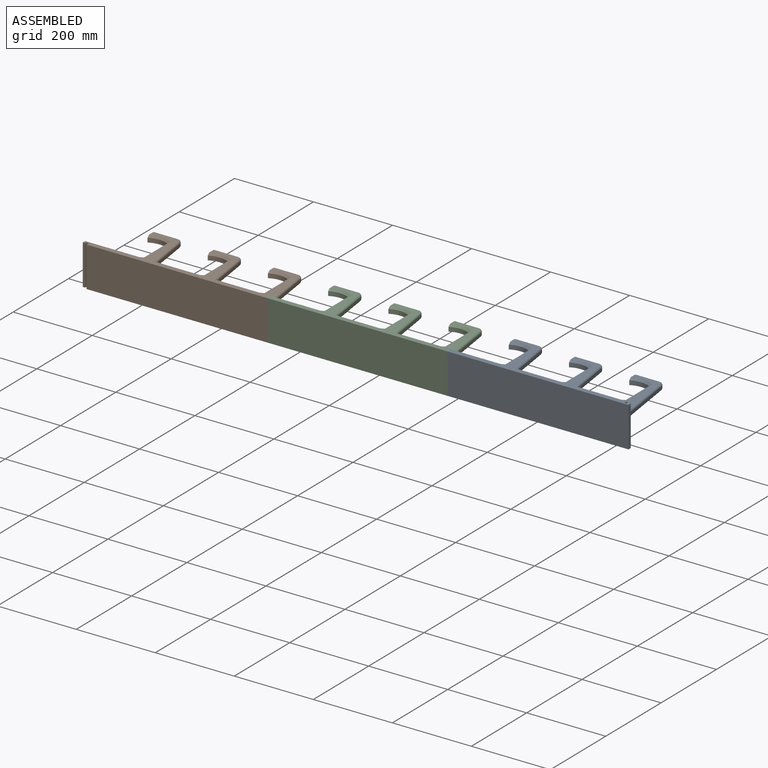
[diagram: assembled view]
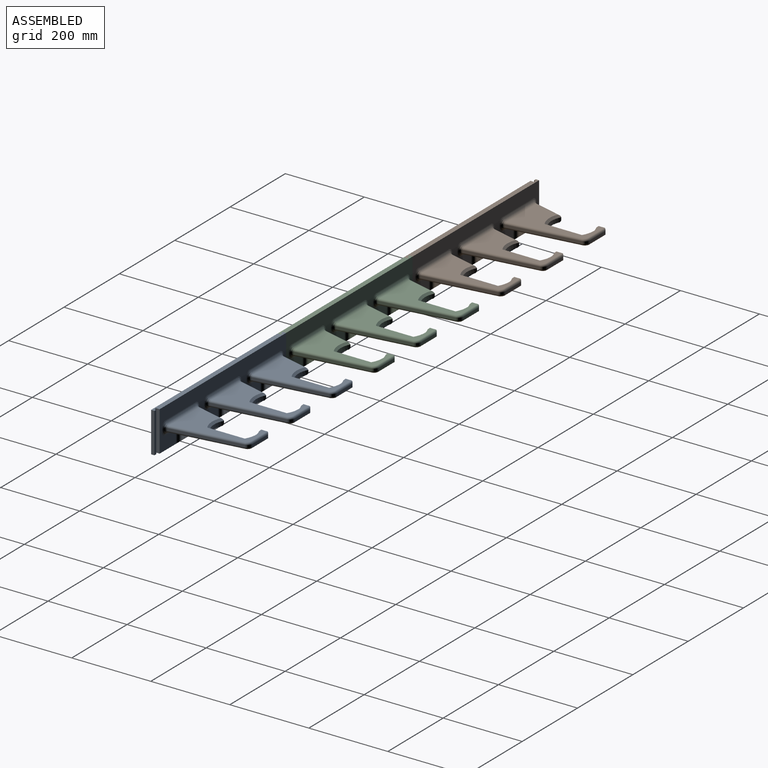
[diagram: assembled view, second angle]
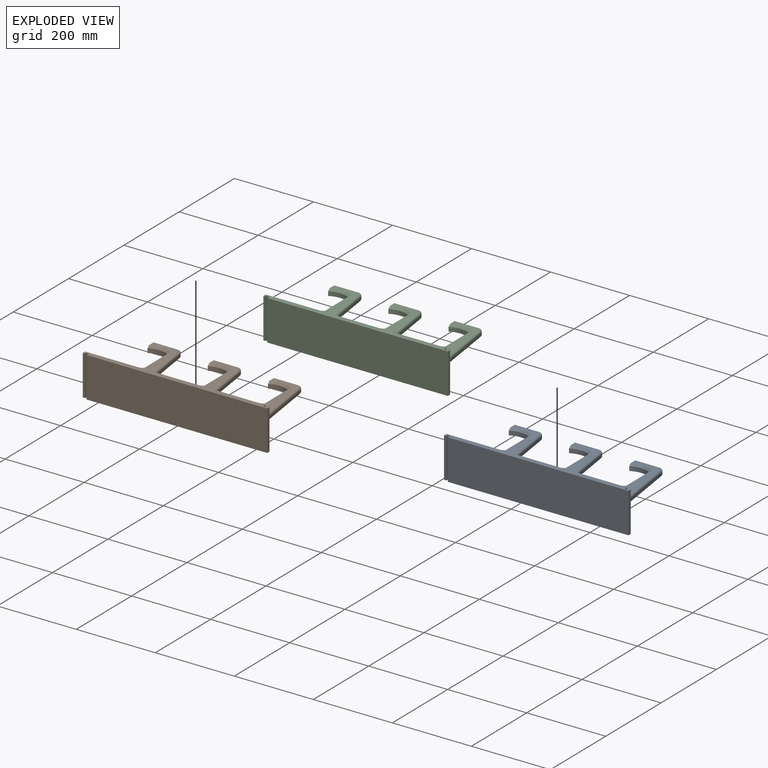
[diagram: exploded view]
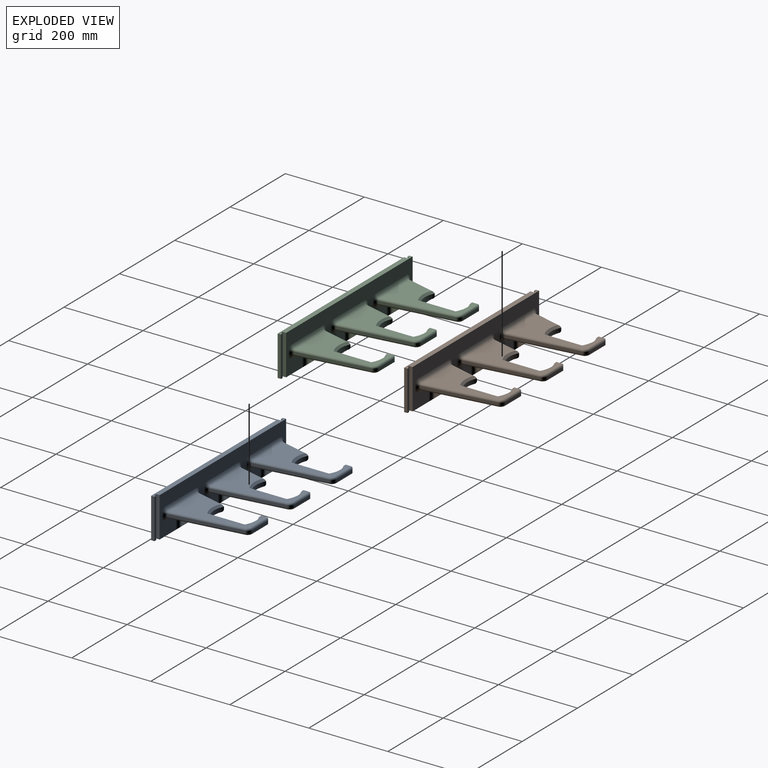
[diagram: exploded view, second angle]
ASSEMBLY  parts=3 mates=2
PART A: 134 faces, bbox 469.9x210.7x101.6 mm
  f0: plane 29.99x25.3mm, normal (1,0,0), area 379.3mm2, adj f88,f119,f120
  f1: plane 29.99x25.3mm, normal (-1,0,0), area 379.3mm2, adj f86,f98,f99
  f2: plane 469.9x12.7mm, normal (0,0,-1), area 5806.4mm2, adj f16,f43,f45,f46,f47,f48,f49,f50
  f3: plane 88.9x10.8mm, normal (-1,0,0), area 959.7mm2, adj f4,f10,f12,f15
  f4: cylinder r=53.98mm len=50.76mm, axis (0,0,-1), area 564.8mm2, adj f3,f5,f12,f13,f81
  f5: plane 75.77x20.26mm, normal (-0.97,0.26,0), area 448.3mm2, adj f4,f80,f81,f100
  f6: plane 177.88x25.26mm, normal (0.99,0.14,0), area 1026.8mm2, adj f7,f69,f72,f94
  f7: cylinder r=12.7mm len=12.57mm, axis (0,0,-1), area 103.8mm2, adj f6,f8,f70,f74
  f8: plane 54.47x5.72mm, normal (0,1,0), area 311.3mm2, adj f7,f71,f73,f75
  f9: plane 20.45x15.88mm, normal (-1,0,0), area 310.1mm2, adj f10,f11,f12,f14,f73
  f10: cylinder r=53.98mm len=50.8mm, axis (0,0,-1), area 571mm2, adj f3,f9,f12,f14
  f11: plane 182.37x106.36mm, normal (0,0,1), area 8802.6mm2, adj f9,f13,f14,f15,f69,f70,f71,f80
  f12: plane 182.37x106.36mm, normal (0,0,-1), area 8369.8mm2, adj f3,f4,f9,f10,f72,f74,f75,f81
  f13: cone r=59.06mm half-angle=45deg, axis (0,0,1), area 396.3mm2, adj f4,f11,f15,f80
  f14: cone r=53.98mm half-angle=45deg, axis (0,0,1), area 399.3mm2, adj f9,f10,f11,f15
  f15: plane 94.83x5.08mm, normal (-0.71,0,0.71), area 660.2mm2, adj f3,f11,f13,f14
  f16: plane 457.2x101.6mm, normal (0,1,0), area 29246.7mm2, adj f2,f43,f44,f45,f90,f92,f93,f94
  f17: plane 88.9x10.8mm, normal (-1,0,0), area 959.7mm2, adj f18,f24,f26,f29
  f18: cylinder r=53.98mm len=50.76mm, axis (0,0,-1), area 564.8mm2, adj f17,f19,f26,f27,f78
  f19: plane 75.77x20.26mm, normal (-0.97,0.26,0), area 448.3mm2, adj f18,f78,f79,f115
  f20: plane 177.88x25.26mm, normal (0.99,0.14,0), area 1026.8mm2, adj f21,f62,f65,f109
  f21: cylinder r=12.7mm len=12.57mm, axis (0,0,-1), area 103.8mm2, adj f20,f22,f63,f67
  f22: plane 54.47x5.72mm, normal (0,1,0), area 311.3mm2, adj f21,f64,f66,f68
  f23: plane 20.45x15.88mm, normal (-1,0,0), area 310.1mm2, adj f24,f25,f26,f28,f66
  f24: cylinder r=53.98mm len=50.8mm, axis (0,0,-1), area 571mm2, adj f17,f23,f26,f28
  f25: plane 182.37x106.36mm, normal (0,0,1), area 8802.6mm2, adj f23,f27,f28,f29,f62,f63,f64,f79
  f26: plane 182.37x106.36mm, normal (0,0,-1), area 8369.8mm2, adj f17,f18,f23,f24,f65,f67,f68,f78
  f27: cone r=59.06mm half-angle=45deg, axis (0,0,1), area 396.3mm2, adj f18,f25,f29,f79
  f28: cone r=53.98mm half-angle=45deg, axis (0,0,1), area 399.3mm2, adj f23,f24,f25,f29
  f29: plane 94.83x5.08mm, normal (-0.71,0,0.71), area 660.2mm2, adj f17,f25,f27,f28
  f30: plane 88.9x10.8mm, normal (-1,0,0), area 959.7mm2, adj f31,f37,f39,f42
  f31: cylinder r=53.98mm len=50.76mm, axis (0,0,-1), area 564.8mm2, adj f30,f32,f39,f40,f76
  f32: plane 75.77x20.26mm, normal (-0.97,0.26,0), area 448.3mm2, adj f31,f76,f77,f130
  f33: plane 177.88x25.26mm, normal (0.99,0.14,0), area 1026.8mm2, adj f34,f55,f58,f124
  f34: cylinder r=12.7mm len=12.57mm, axis (0,0,-1), area 103.8mm2, adj f33,f35,f56,f60
  f35: plane 54.47x5.72mm, normal (0,1,0), area 311.3mm2, adj f34,f57,f59,f61
  f36: plane 20.45x15.88mm, normal (-1,0,0), area 310.1mm2, adj f37,f38,f39,f41,f59
  f37: cylinder r=53.98mm len=50.8mm, axis (0,0,-1), area 571mm2, adj f30,f36,f39,f41
  f38: plane 182.37x106.36mm, normal (0,0,1), area 8802.6mm2, adj f36,f40,f41,f42,f55,f56,f57,f77
  f39: plane 182.37x106.36mm, normal (0,0,-1), area 8369.8mm2, adj f30,f31,f36,f37,f58,f60,f61,f76
  f40: cone r=59.06mm half-angle=45deg, axis (0,0,1), area 396.3mm2, adj f31,f38,f42,f77
  f41: cone r=53.98mm half-angle=45deg, axis (0,0,1), area 399.3mm2, adj f36,f37,f38,f42
  f42: plane 94.83x5.08mm, normal (-0.71,0,0.71), area 660.2mm2, adj f30,f38,f40,f41
  f43: plane 101.6x8.47mm, normal (1,0,0), area 860.3mm2, adj f2,f16,f44,f52
  f44: plane 469.9x12.7mm, normal (0,0,1), area 5806.4mm2, adj f16,f43,f45,f46,f47,f48,f49,f50
  f45: plane 101.6x8.47mm, normal (-1,0,0), area 860.3mm2, adj f2,f16,f44,f50
  f46: plane 457.2x101.6mm, normal (0,-1,0), area 46451.5mm2, adj f2,f44,f47,f53
  f47: plane 101.6x8.47mm, normal (-1,0,0), area 860.1mm2, adj f2,f44,f46,f48
  f48: plane 101.6x6.35mm, normal (0,-1,0), area 645.2mm2, adj f2,f44,f47,f49
  f49: plane 101.6x4.23mm, normal (1,0,0), area 430.1mm2, adj f2,f44,f48,f50
  f50: plane 101.6x6.35mm, normal (0,-1,0), area 645.2mm2, adj f2,f44,f45,f49
  f51: plane 101.6x4.23mm, normal (-1,0,0), area 430.1mm2, adj f2,f44,f52,f54
  f52: plane 101.6x6.35mm, normal (0,1,0), area 645.2mm2, adj f2,f43,f44,f51
  f53: plane 101.6x8.47mm, normal (1,0,0), area 860.1mm2, adj f2,f44,f46,f54
  f54: plane 101.6x6.35mm, normal (0,1,0), area 645.2mm2, adj f2,f44,f51,f53
  f55: cylinder r=5.08mm len=178.59mm, axis (0.14,-0.99,0), area 1427.6mm2, adj f33,f38,f56,f125
  f56: torus R=7.62mm, axis (0,0,1), area 123.8mm2, adj f34,f38,f55,f57
  f57: cylinder r=5.08mm len=59.55mm, axis (1,0,0), area 460.5mm2, adj f35,f38,f56,f59
  f58: cylinder r=5.08mm len=178.59mm, axis (-0.14,0.99,0), area 1427.6mm2, adj f33,f39,f60,f123
  f59: cylinder r=5.08mm len=15.88mm, axis (0,0,-1), area 97.2mm2, adj f35,f36,f57,f61
  f60: torus R=7.62mm, axis (0,0,1), area 123.8mm2, adj f34,f39,f58,f61
  f61: cylinder r=5.08mm len=59.55mm, axis (-1,0,0), area 460.5mm2, adj f35,f39,f59,f60
  f62: cylinder r=5.08mm len=178.59mm, axis (0.14,-0.99,0), area 1427.6mm2, adj f20,f25,f63,f110
  f63: torus R=7.62mm, axis (0,0,1), area 123.8mm2, adj f21,f25,f62,f64
  f64: cylinder r=5.08mm len=59.55mm, axis (1,0,0), area 460.5mm2, adj f22,f25,f63,f66
  f65: cylinder r=5.08mm len=178.59mm, axis (-0.14,0.99,0), area 1427.6mm2, adj f20,f26,f67,f108
  f66: cylinder r=5.08mm len=15.88mm, axis (0,0,-1), area 97.2mm2, adj f22,f23,f64,f68
  f67: torus R=7.62mm, axis (0,0,1), area 123.8mm2, adj f21,f26,f65,f68
  f68: cylinder r=5.08mm len=59.55mm, axis (-1,0,0), area 460.5mm2, adj f22,f26,f66,f67
  f69: cylinder r=5.08mm len=178.59mm, axis (0.14,-0.99,0), area 1427.6mm2, adj f6,f11,f70,f95
  f70: torus R=7.62mm, axis (0,0,1), area 123.8mm2, adj f7,f11,f69,f71
  f71: cylinder r=5.08mm len=59.55mm, axis (1,0,0), area 460.5mm2, adj f8,f11,f70,f73
  f72: cylinder r=5.08mm len=178.59mm, axis (-0.14,0.99,0), area 1427.6mm2, adj f6,f12,f74,f93
  f73: cylinder r=5.08mm len=15.88mm, axis (0,0,-1), area 97.2mm2, adj f8,f9,f71,f75
  f74: torus R=7.62mm, axis (0,0,1), area 123.8mm2, adj f7,f12,f72,f75
  f75: cylinder r=5.08mm len=59.55mm, axis (-1,0,0), area 460.5mm2, adj f8,f12,f73,f74
  f76: cylinder r=5.08mm len=77.09mm, axis (-0.26,-0.97,0), area 611.5mm2, adj f31,f32,f39,f132
  f77: cylinder r=5.08mm len=77.09mm, axis (0.26,0.97,0), area 585.3mm2, adj f32,f38,f40,f127
  f78: cylinder r=5.08mm len=77.09mm, axis (-0.26,-0.97,0), area 611.5mm2, adj f18,f19,f26,f117
  f79: cylinder r=5.08mm len=77.09mm, axis (0.26,0.97,0), area 585.3mm2, adj f19,f25,f27,f112
  f80: cylinder r=5.08mm len=77.09mm, axis (0.26,0.97,0), area 585.3mm2, adj f5,f11,f13,f97
  f81: cylinder r=5.08mm len=77.09mm, axis (-0.26,-0.97,0), area 611.5mm2, adj f4,f5,f12,f102
  f82: plane 29.99x25.3mm, normal (-1,0,0), area 379.3mm2, adj f88,f128,f129
  f83: plane 29.99x25.3mm, normal (1,0,0), area 379.3mm2, adj f87,f104,f105
  f84: plane 29.99x25.3mm, normal (-1,0,0), area 379.3mm2, adj f87,f113,f114
  f85: plane 29.99x25.3mm, normal (1,0,0), area 379.3mm2, adj f86,f89,f90
  f86: plane 50.8x42.86mm, normal (0,0.64,-0.76), area 1166.5mm2, adj f1,f2,f12,f85,f89,f90,f98,f99
  f87: plane 50.8x42.86mm, normal (0,0.64,-0.76), area 1166.5mm2, adj f2,f26,f83,f84,f104,f105,f113,f114
  f88: plane 50.8x42.86mm, normal (0,0.64,-0.76), area 1166.5mm2, adj f0,f2,f39,f82,f119,f120,f128,f129
  f89: cylinder r=9.53mm len=41.28mm, axis (0,1,0), area 556.2mm2, adj f12,f85,f86,f91
  f90: cylinder r=9.53mm len=33.34mm, axis (0,0,-1), area 455.1mm2, adj f16,f85,f86,f91
  f91: sphere r=9.53mm, area 142.5mm2, adj f89,f90,f92
  f92: cylinder r=9.53mm len=35.74mm, axis (1,0,0), area 534.8mm2, adj f12,f16,f91,f93
  f93: bspline ~17.32x15.24mm, area 195.6mm2, adj f16,f72,f92,f94
  f94: cylinder r=9.53mm len=9.43mm, axis (0,0,-1), area 77.8mm2, adj f6,f16,f93,f95
  f95: bspline ~17.32x14.61mm, area 195.6mm2, adj f16,f69,f94,f96
  f96: cylinder r=9.53mm len=106.36mm, axis (-1,0,0), area 1591.4mm2, adj f11,f16,f95,f97
  f97: bspline ~15.12x14.61mm, area 193.9mm2, adj f16,f80,f96,f100
  f98: cylinder r=9.53mm len=33.34mm, axis (0,0,1), area 455.1mm2, adj f1,f16,f86,f101
  f99: cylinder r=9.53mm len=41.28mm, axis (0,-1,0), area 556.2mm2, adj f1,f12,f86,f101
  f100: cylinder r=9.53mm len=9.2mm, axis (0,0,1), area 71.3mm2, adj f5,f16,f97,f102
  f101: sphere r=9.53mm, area 142.5mm2, adj f98,f99,f103
  f102: bspline ~15.12x14.61mm, area 193.9mm2, adj f16,f81,f100,f103
  f103: cylinder r=9.53mm len=35.69mm, axis (1,0,0), area 534mm2, adj f12,f16,f101,f102
  f104: cylinder r=9.53mm len=41.28mm, axis (0,1,0), area 556.2mm2, adj f26,f83,f87,f106
  f105: cylinder r=9.53mm len=33.34mm, axis (0,0,-1), area 455.1mm2, adj f16,f83,f87,f106
  f106: sphere r=9.53mm, area 142.5mm2, adj f104,f105,f107
  f107: cylinder r=9.53mm len=35.74mm, axis (1,0,0), area 534.8mm2, adj f16,f26,f106,f108
  f108: bspline ~17.32x15.24mm, area 195.6mm2, adj f16,f65,f107,f109
  f109: cylinder r=9.53mm len=9.43mm, axis (0,0,-1), area 77.8mm2, adj f16,f20,f108,f110
  f110: bspline ~17.32x14.61mm, area 195.6mm2, adj f16,f62,f109,f111
  f111: cylinder r=9.53mm len=106.36mm, axis (-1,0,0), area 1591.4mm2, adj f16,f25,f110,f112
  f112: bspline ~15.12x14.61mm, area 193.9mm2, adj f16,f79,f111,f115
  f113: cylinder r=9.53mm len=33.34mm, axis (0,0,1), area 455.1mm2, adj f16,f84,f87,f116
  f114: cylinder r=9.53mm len=41.28mm, axis (0,-1,0), area 556.2mm2, adj f26,f84,f87,f116
  f115: cylinder r=9.53mm len=9.2mm, axis (0,0,1), area 71.3mm2, adj f16,f19,f112,f117
  f116: sphere r=9.53mm, area 142.5mm2, adj f113,f114,f118
  f117: bspline ~15.12x14.61mm, area 193.9mm2, adj f16,f78,f115,f118
  f118: cylinder r=9.53mm len=35.69mm, axis (1,0,0), area 534mm2, adj f16,f26,f116,f117
  f119: cylinder r=9.53mm len=41.28mm, axis (0,1,0), area 556.2mm2, adj f0,f39,f88,f121
  f120: cylinder r=9.53mm len=33.34mm, axis (0,0,-1), area 455.1mm2, adj f0,f16,f88,f121
  f121: sphere r=9.53mm, area 142.5mm2, adj f119,f120,f122
  f122: cylinder r=9.53mm len=35.74mm, axis (1,0,0), area 534.8mm2, adj f16,f39,f121,f123
  f123: bspline ~17.32x15.24mm, area 195.6mm2, adj f16,f58,f122,f124
  f124: cylinder r=9.53mm len=9.43mm, axis (0,0,-1), area 77.8mm2, adj f16,f33,f123,f125
  f125: bspline ~14.75x14.61mm, area 195.6mm2, adj f16,f55,f124,f126
  f126: cylinder r=9.53mm len=106.36mm, axis (-1,0,0), area 1591.4mm2, adj f16,f38,f125,f127
  f127: bspline ~15.12x14.61mm, area 193.9mm2, adj f16,f77,f126,f130
  f128: cylinder r=9.53mm len=33.34mm, axis (0,0,1), area 455.1mm2, adj f16,f82,f88,f131
  f129: cylinder r=9.53mm len=41.28mm, axis (0,-1,0), area 556.2mm2, adj f39,f82,f88,f131
  f130: cylinder r=9.53mm len=9.2mm, axis (0,0,1), area 71.3mm2, adj f16,f32,f127,f132
  f131: sphere r=9.53mm, area 142.5mm2, adj f128,f129,f133
  f132: bspline ~15.12x14.61mm, area 193.9mm2, adj f16,f76,f130,f133
  f133: cylinder r=9.53mm len=35.69mm, axis (1,0,0), area 534mm2, adj f16,f39,f131,f132
PART B: same geometry as A
PART C: same geometry as A
PLACE A at identity fixed
PLACE B t=(-914.4,0,0)mm
PLACE C t=(-457.2,0,0)mm
MATE slider C.f44 <-> A.f44  axis (0,0,1) through (-91.99,-92.84,58.74)mm
MATE slider B.f44 <-> C.f44  axis (0,0,1) through (-549.19,-92.84,58.74)mm
